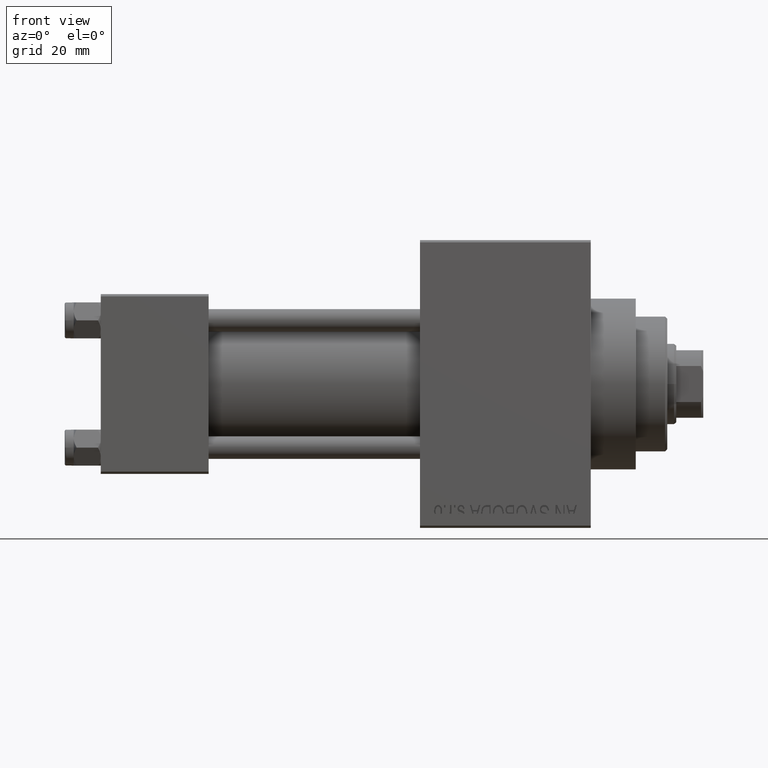
[diagram: clean part render]
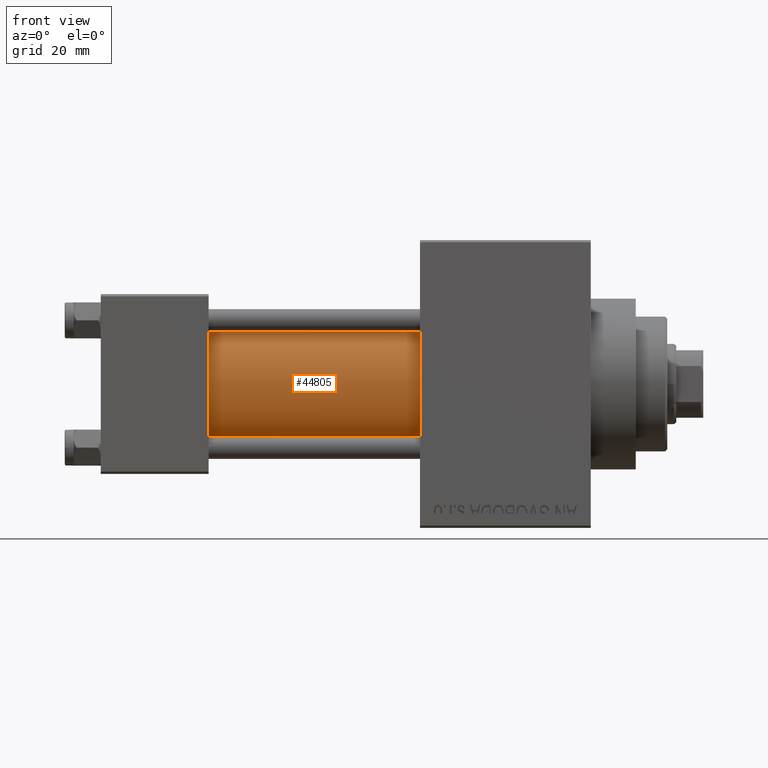
[diagram: same view with one face highlighted and labeled with its STEP entity id]
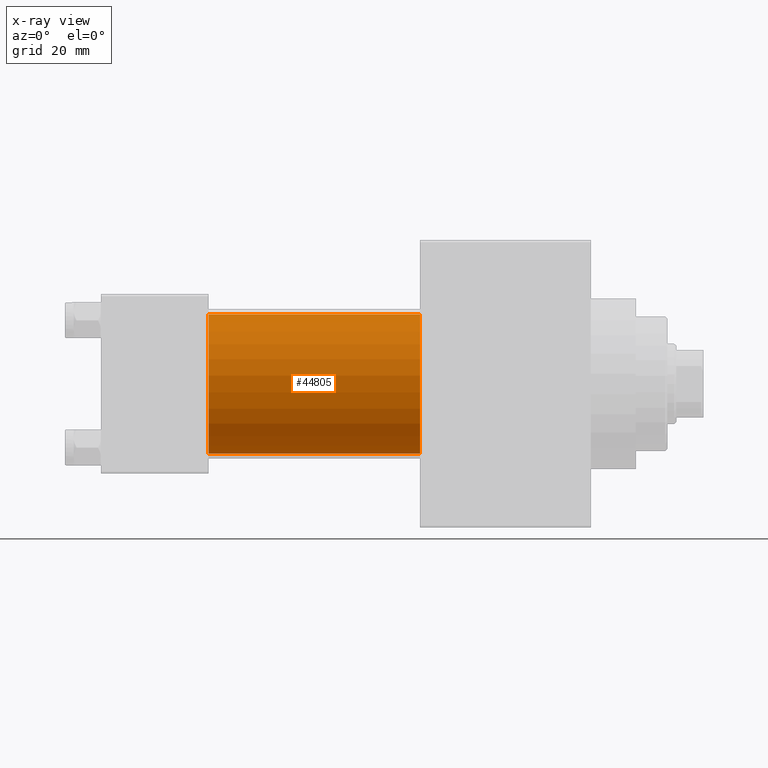
[diagram: x-ray of the same camera — body ghosted, the highlighted face saturated]
A machine part, front view. The second image highlights one B-rep face of the part: STEP entity #44805.
The next image is the same camera in x-ray: the body ghosted, the highlighted face saturated — about 0% of this face is hidden behind the body in this view.
In plain terms, the highlighted cylindrical surface (partial cylindrical patch) has radius 15.5 mm, axis along (-1, -0, -0).
Its self-contained STEP definition (entity closure, byte-faithful):
#108 = DIRECTION ( 'NONE',  ( -1.000000000000000000, -0.000000000000000000, -0.000000000000000000 ) ) ;
#2380 = VECTOR ( 'NONE', #11651, 1000.000000000000000 ) ;
#2544 = VERTEX_POINT ( 'NONE', #36309 ) ;
#8151 = DIRECTION ( 'NONE',  ( 0.000000000000000000, 0.000000000000000000, 1.000000000000000000 ) ) ;
#11651 = DIRECTION ( 'NONE',  ( -1.000000000000000000, -0.000000000000000000, -0.000000000000000000 ) ) ;
#12193 = VERTEX_POINT ( 'NONE', #38261 ) ;
#12599 = CARTESIAN_POINT ( 'NONE',  ( 71.00000000000001421, -2.602085213965210642E-15, 0.000000000000000000 ) ) ;
#12854 = CYLINDRICAL_SURFACE ( 'NONE', #38747, 15.50000000000000000 ) ;
#13538 = CIRCLE ( 'NONE', #41041, 15.50000000000000000 ) ;
#16360 = CARTESIAN_POINT ( 'NONE',  ( 24.00000000000000000, -2.602085213965210642E-15, 15.50000000000000000 ) ) ;
#17593 = DIRECTION ( 'NONE',  ( 1.000000000000000000, 0.000000000000000000, 0.000000000000000000 ) ) ;
#18363 = LINE ( 'NONE', #25973, #30527 ) ;
#18935 = ORIENTED_EDGE ( 'NONE', *, *, #34082, .F. ) ;
#20458 = FACE_OUTER_BOUND ( 'NONE', #26881, .T. ) ;
#22192 = EDGE_CURVE ( 'NONE', #12193, #33176, #18363, .T. ) ;
#23588 = EDGE_CURVE ( 'NONE', #33176, #2544, #28210, .T. ) ;
#25973 = CARTESIAN_POINT ( 'NONE',  ( 71.00000000000001421, -2.602085213965210642E-15, 15.50000000000000000 ) ) ;
#26881 = EDGE_LOOP ( 'NONE', ( #46524, #18935, #39117, #29253 ) ) ;
#28091 = DIRECTION ( 'NONE',  ( 0.000000000000000000, 0.000000000000000000, 1.000000000000000000 ) ) ;
#28210 = CIRCLE ( 'NONE', #47103, 15.50000000000000000 ) ;
#29253 = ORIENTED_EDGE ( 'NONE', *, *, #23588, .T. ) ;
#30110 = EDGE_CURVE ( 'NONE', #32227, #2544, #30356, .T. ) ;
#30356 = LINE ( 'NONE', #45381, #2380 ) ;
#30527 = VECTOR ( 'NONE', #48645, 1000.000000000000000 ) ;
#32227 = VERTEX_POINT ( 'NONE', #32813 ) ;
#32813 = CARTESIAN_POINT ( 'NONE',  ( 71.00000000000001421, -7.038826752868131828E-16, -15.50000000000000000 ) ) ;
#33176 = VERTEX_POINT ( 'NONE', #16360 ) ;
#34004 = CARTESIAN_POINT ( 'NONE',  ( 24.00000000000000000, -2.602085213965210642E-15, 0.000000000000000000 ) ) ;
#34082 = EDGE_CURVE ( 'NONE', #12193, #32227, #13538, .T. ) ;
#36300 = CARTESIAN_POINT ( 'NONE',  ( 71.00000000000001421, -2.602085213965210642E-15, 0.000000000000000000 ) ) ;
#36309 = CARTESIAN_POINT ( 'NONE',  ( 24.00000000000000000, -7.038826752868131828E-16, -15.50000000000000000 ) ) ;
#37264 = DIRECTION ( 'NONE',  ( 0.000000000000000000, 0.000000000000000000, -1.000000000000000000 ) ) ;
#38261 = CARTESIAN_POINT ( 'NONE',  ( 71.00000000000001421, -2.602085213965210642E-15, 15.50000000000000000 ) ) ;
#38420 = DIRECTION ( 'NONE',  ( 1.000000000000000000, 0.000000000000000000, 0.000000000000000000 ) ) ;
#38747 = AXIS2_PLACEMENT_3D ( 'NONE', #12599, #108, #28091 ) ;
#39117 = ORIENTED_EDGE ( 'NONE', *, *, #22192, .T. ) ;
#41041 = AXIS2_PLACEMENT_3D ( 'NONE', #36300, #17593, #37264 ) ;
#44805 = ADVANCED_FACE ( 'NONE', ( #20458 ), #12854, .T. ) ;
#45381 = CARTESIAN_POINT ( 'NONE',  ( 71.00000000000001421, -7.038826752868131828E-16, -15.50000000000000000 ) ) ;
#46524 = ORIENTED_EDGE ( 'NONE', *, *, #30110, .F. ) ;
#47103 = AXIS2_PLACEMENT_3D ( 'NONE', #34004, #38420, #8151 ) ;
#48645 = DIRECTION ( 'NONE',  ( -1.000000000000000000, -0.000000000000000000, -0.000000000000000000 ) ) ;